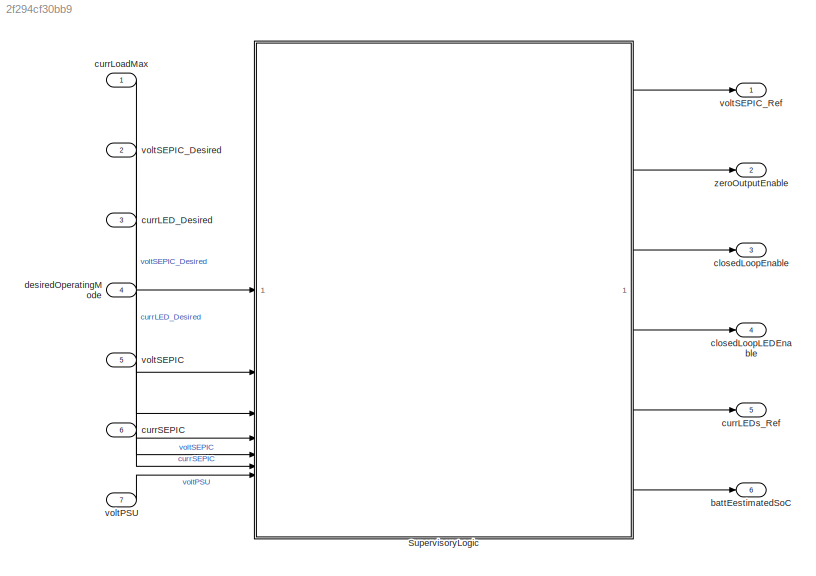
MODEL slx_2f294cf30bb9
KIND model
CONFIG AbsTol = auto
CONFIG EnableMultiTasking = off
CONFIG FixedStep = auto
CONFIG MaxStep = auto
CONFIG MinStep = auto
CONFIG RelTol = 1e-3
CONFIG SampleTimeConstraint = Unconstrained
CONFIG SolverName = FixedStepDiscrete
CONFIG StartTime = 0.0
CONFIG StopTime = inf
WORKSPACE source: mxarray member
WORKSPACE TsModel = 0.1
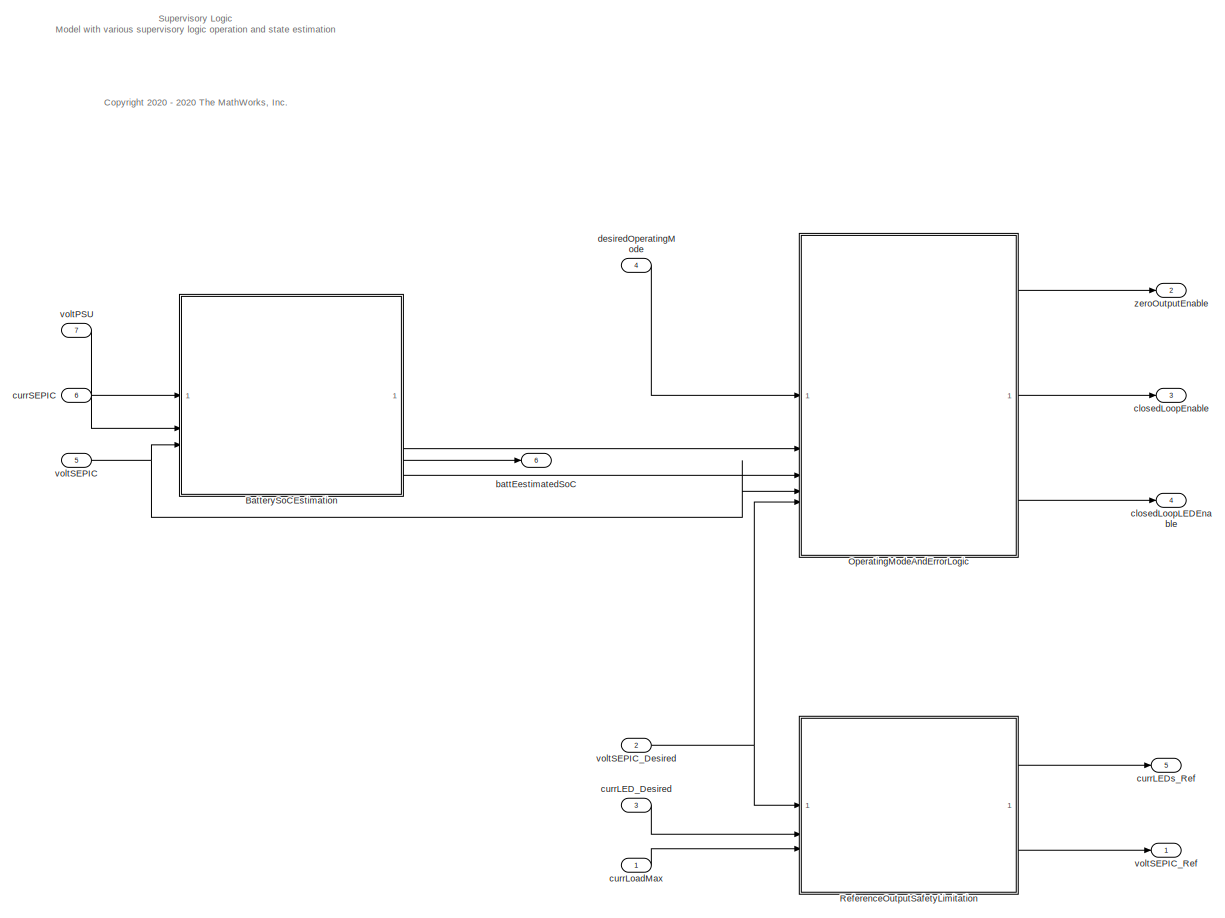
[diagram: SupervisoryLogic - part 1/1, most of the canvas]
BLOCK [SubSystem] SupervisoryLogic
  RTWFcnNameOpts = Use subsystem name
  RTWSystemCode = Reusable function
  TreatAsAtomicUnit = on
BLOCK [SubSystem] SupervisoryLogic/BatterySoCEstimation 
  RTWSystemCode = Reusable function
  ReferencedSubsystem = BatterySoCEstimation
  TreatAsAtomicUnit = on
BLOCK [SubSystem] SupervisoryLogic/OperatingModeAndErrorLogic
  RTWSystemCode = Reusable function
  ReferencedSubsystem = OperatingModeAndErrorLogic
  TreatAsAtomicUnit = on
BLOCK [SubSystem] SupervisoryLogic/ReferenceOutputSafetyLimitation
  RTWSystemCode = Reusable function
  ReferencedSubsystem = ReferenceOutputSafetyLimitation
  TreatAsAtomicUnit = on
BLOCK [Outport] SupervisoryLogic/battEestimatedSoC
  OutDataTypeStr = single
  Port = 6
  PortDimensions = 1
  SampleTime = TsModel
  SamplingMode = Sample based
  SignalType = real
BLOCK [Outport] SupervisoryLogic/closedLoopEnable
  OutDataTypeStr = boolean
  Port = 3
  PortDimensions = 1
  SampleTime = TsModel
  SamplingMode = Sample based
  SignalType = real
  Unit = 1
BLOCK [Outport] SupervisoryLogic/closedLoopLEDEnable
  OutDataTypeStr = boolean
  Port = 4
  PortDimensions = 1
  SampleTime = TsModel
  SamplingMode = Sample based
  SignalType = real
  Unit = 1
BLOCK [Inport] SupervisoryLogic/currLED_Desired
  OutDataTypeStr = single
  Port = 3
  PortDimensions = [6 1]
  SampleTime = TsModel
  SamplingMode = Sample based
  SignalType = real
  Unit = mA
BLOCK [Outport] SupervisoryLogic/currLEDs_Ref
  OutDataTypeStr = single
  Port = 5
  PortDimensions = [6 1 ]
  SampleTime = TsModel
  SamplingMode = Sample based
  SignalType = real
  Unit = mA
BLOCK [Inport] SupervisoryLogic/currLoadMax
  OutDataTypeStr = single
  PortDimensions = 1
  SampleTime = TsModel
  SamplingMode = Sample based
  SignalType = real
BLOCK [Inport] SupervisoryLogic/currSEPIC
  OutDataTypeStr = single
  Port = 6
  PortDimensions = 1
  SampleTime = TsModel
  SamplingMode = Sample based
  SignalType = real
  Unit = mA
BLOCK [Inport] SupervisoryLogic/desiredOperatingMode
  OutDataTypeStr = Enum: operatingMode
  Port = 4
  PortDimensions = 1
  SampleTime = TsModel
  SamplingMode = Sample based
  SignalType = real
BLOCK [Inport] SupervisoryLogic/voltPSU
  OutDataTypeStr = single
  Port = 7
  PortDimensions = 1
  SampleTime = TsModel
  SamplingMode = Sample based
  SignalType = real
  Unit = V
BLOCK [Inport] SupervisoryLogic/voltSEPIC
  OutDataTypeStr = single
  Port = 5
  PortDimensions = 1
  SampleTime = TsModel
  SamplingMode = Sample based
  SignalType = real
  Unit = V
BLOCK [Inport] SupervisoryLogic/voltSEPIC_Desired
  OutDataTypeStr = single
  Port = 2
  PortDimensions = 1
  SampleTime = TsModel
  SamplingMode = Sample based
  SignalType = real
BLOCK [Outport] SupervisoryLogic/voltSEPIC_Ref
  OutDataTypeStr = single
  PortDimensions = 1
  SampleTime = TsModel
  SamplingMode = Sample based
  SignalType = real
  Unit = V
BLOCK [Outport] SupervisoryLogic/zeroOutputEnable
  OutDataTypeStr = boolean
  Port = 2
  PortDimensions = 1
  SampleTime = TsModel
  SamplingMode = Sample based
  SignalType = real
  Unit = 1
BLOCK [Outport] battEestimatedSoC
  OutDataTypeStr = single
  Port = 6
  PortDimensions = 1
  SampleTime = TsModel
  SamplingMode = Sample based
  SignalType = real
BLOCK [Outport] closedLoopEnable
  OutDataTypeStr = boolean
  Port = 3
  PortDimensions = 1
  SampleTime = TsModel
  SamplingMode = Sample based
  SignalType = real
  Unit = 1
BLOCK [Outport] closedLoopLEDEnable
  OutDataTypeStr = boolean
  Port = 4
  PortDimensions = 1
  SampleTime = TsModel
  SamplingMode = Sample based
  SignalType = real
  Unit = 1
BLOCK [Inport] currLED_Desired
  OutDataTypeStr = single
  Port = 3
  PortDimensions = [6 1]
  SampleTime = TsModel
  SamplingMode = Sample based
  SignalType = real
  Unit = mA
BLOCK [Outport] currLEDs_Ref
  OutDataTypeStr = single
  Port = 5
  PortDimensions = [6 1 ]
  SampleTime = TsModel
  SamplingMode = Sample based
  SignalType = real
  Unit = mA
BLOCK [Inport] currLoadMax
  OutDataTypeStr = single
  PortDimensions = 1
  SampleTime = TsModel
  SamplingMode = Sample based
  SignalType = real
BLOCK [Inport] currSEPIC
  OutDataTypeStr = single
  Port = 6
  PortDimensions = 1
  SampleTime = TsModel
  SamplingMode = Sample based
  SignalType = real
  Unit = mA
BLOCK [Inport] desiredOperatingMode
  OutDataTypeStr = Enum:operatingMode
  Port = 4
  PortDimensions = 1
  SampleTime = TsModel
  SamplingMode = Sample based
  SignalType = real
BLOCK [Inport] voltPSU
  OutDataTypeStr = single
  Port = 7
  PortDimensions = 1
  SampleTime = TsModel
  SamplingMode = Sample based
  SignalType = real
  Unit = V
BLOCK [Inport] voltSEPIC
  OutDataTypeStr = single
  Port = 5
  PortDimensions = 1
  SampleTime = TsModel
  SamplingMode = Sample based
  SignalType = real
  Unit = V
BLOCK [Inport] voltSEPIC_Desired
  OutDataTypeStr = single
  Port = 2
  PortDimensions = 1
  SampleTime = TsModel
  SamplingMode = Sample based
  SignalType = real
BLOCK [Outport] voltSEPIC_Ref
  OutDataTypeStr = single
  PortDimensions = 1
  SampleTime = TsModel
  SamplingMode = Sample based
  SignalType = real
  Unit = V
BLOCK [Outport] zeroOutputEnable
  OutDataTypeStr = boolean
  Port = 2
  PortDimensions = 1
  SampleTime = TsModel
  SamplingMode = Sample based
  SignalType = real
  Unit = 1
ANNOTATION SupervisoryLogic: <copyright redacted>
ANNOTATION SupervisoryLogic: Supervisory Logic Model with various supervisory logic operation and state estimation
LINE SupervisoryLogic/BatterySoCEstimation :1 -> SupervisoryLogic/OperatingModeAndErrorLogic:2
LINE SupervisoryLogic/BatterySoCEstimation :2 -> SupervisoryLogic/OperatingModeAndErrorLogic:3
LINE SupervisoryLogic/BatterySoCEstimation :3 -> SupervisoryLogic/battEestimatedSoC:1
LINE SupervisoryLogic/OperatingModeAndErrorLogic:1 -> SupervisoryLogic/zeroOutputEnable:1
LINE SupervisoryLogic/OperatingModeAndErrorLogic:2 -> SupervisoryLogic/closedLoopEnable:1
LINE SupervisoryLogic/OperatingModeAndErrorLogic:3 -> SupervisoryLogic/closedLoopLEDEnable:1
LINE SupervisoryLogic/ReferenceOutputSafetyLimitation:1 -> SupervisoryLogic/currLEDs_Ref:1
LINE SupervisoryLogic/ReferenceOutputSafetyLimitation:2 -> SupervisoryLogic/voltSEPIC_Ref:1
LINE SupervisoryLogic/currLED_Desired:1 -> SupervisoryLogic/ReferenceOutputSafetyLimitation:2
LINE SupervisoryLogic/currLoadMax:1 -> SupervisoryLogic/ReferenceOutputSafetyLimitation:3
LINE SupervisoryLogic/currSEPIC:1 -> SupervisoryLogic/BatterySoCEstimation :2
LINE SupervisoryLogic/desiredOperatingMode:1 -> SupervisoryLogic/OperatingModeAndErrorLogic:1
LINE SupervisoryLogic/voltPSU:1 -> SupervisoryLogic/BatterySoCEstimation :1
NET SupervisoryLogic/voltSEPIC:1 -> SupervisoryLogic/BatterySoCEstimation :3, SupervisoryLogic/OperatingModeAndErrorLogic:4
NET SupervisoryLogic/voltSEPIC_Desired:1 -> SupervisoryLogic/OperatingModeAndErrorLogic:5, SupervisoryLogic/ReferenceOutputSafetyLimitation:1
LINE SupervisoryLogic:1 -> voltSEPIC_Ref:1
LINE SupervisoryLogic:2 -> zeroOutputEnable:1
LINE SupervisoryLogic:3 -> closedLoopEnable:1
LINE SupervisoryLogic:4 -> closedLoopLEDEnable:1
LINE SupervisoryLogic:5 -> currLEDs_Ref:1
LINE SupervisoryLogic:6 -> battEestimatedSoC:1
LINE currLED_Desired:1 -> SupervisoryLogic:3
LINE currLoadMax:1 -> SupervisoryLogic:1
LINE currSEPIC:1 -> SupervisoryLogic:6
LINE desiredOperatingMode:1 -> SupervisoryLogic:4
LINE voltPSU:1 -> SupervisoryLogic:7
LINE voltSEPIC:1 -> SupervisoryLogic:5
LINE voltSEPIC_Desired:1 -> SupervisoryLogic:2
note: NET lines group one-source signal fan-out (src -> all destinations, sorted); 1:1 wires keep LINE
